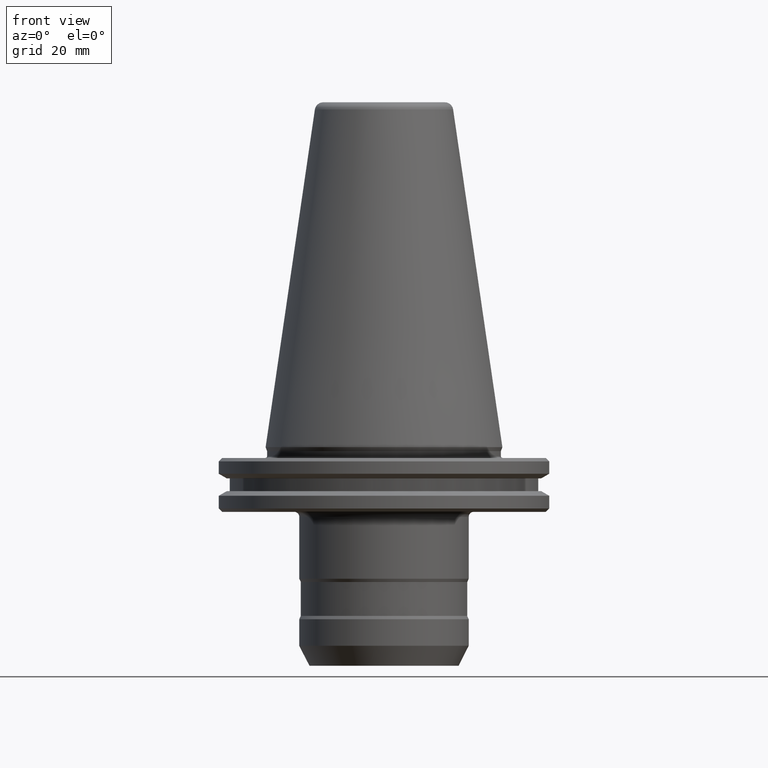
[diagram: clean part render]
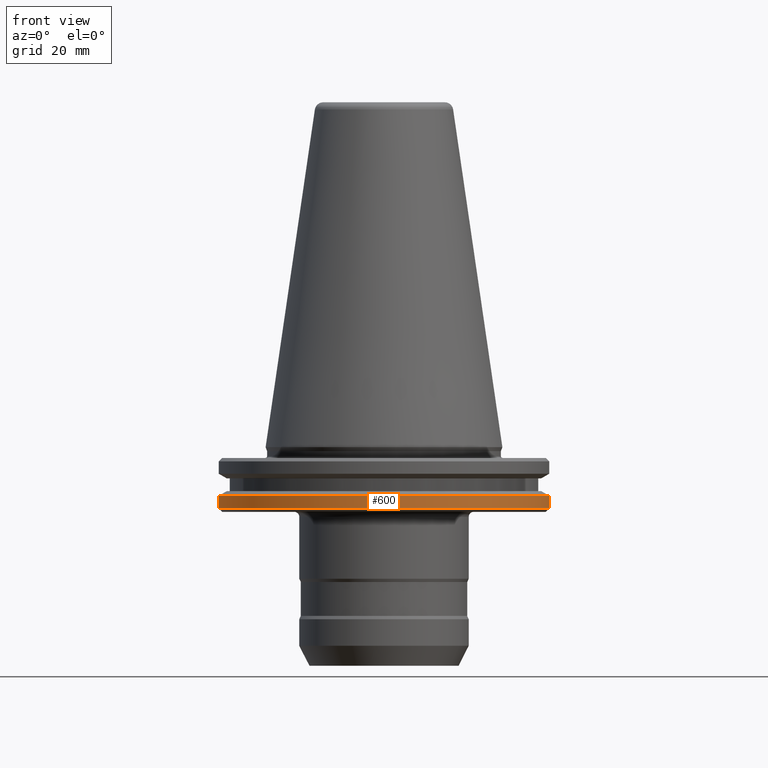
[diagram: same view with one face highlighted and labeled with its STEP entity id]
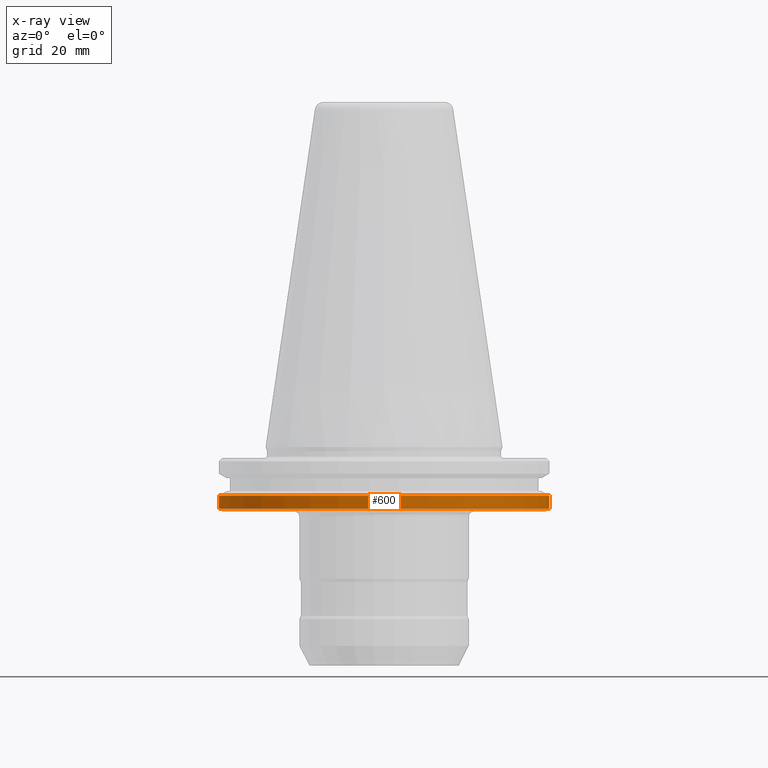
[diagram: x-ray of the same camera — body ghosted, the highlighted face saturated]
A machine part, front view. The second image highlights one B-rep face of the part: STEP entity #600.
The next image is the same camera in x-ray: the body ghosted, the highlighted face saturated — about 0% of this face is hidden behind the body in this view.
In plain terms, the highlighted cylindrical surface (partial cylindrical patch) has radius 48.75 mm, axis along (-0, -0, 1).
Its self-contained STEP definition (entity closure, byte-faithful):
#10 = CARTESIAN_POINT ( 'NONE',  ( 48.75000000637186300, 0.0000000000000000000, -14.34759526419227000 ) ) ;
#67 = CYLINDRICAL_SURFACE ( 'NONE', #376, 48.75000000637186300 ) ;
#70 = EDGE_CURVE ( 'NONE', #461, #1043, #275, .T. ) ;
#98 = CARTESIAN_POINT ( 'NONE',  ( 0.0000000000000000000, 0.0000000000000000000, -18.10000000000000500 ) ) ;
#179 = DIRECTION ( 'NONE',  ( 1.000000000000000000, 0.0000000000000000000, 0.0000000000000000000 ) ) ;
#183 = VERTEX_POINT ( 'NONE', #615 ) ;
#236 = EDGE_CURVE ( 'NONE', #461, #183, #438, .T. ) ;
#247 = DIRECTION ( 'NONE',  ( -0.0000000000000000000, -0.0000000000000000000, 1.000000000000000000 ) ) ;
#275 = CIRCLE ( 'NONE', #644, 48.75000000637186300 ) ;
#301 = DIRECTION ( 'NONE',  ( 1.000000000000000000, 0.0000000000000000000, 0.0000000000000000000 ) ) ;
#324 = VERTEX_POINT ( 'NONE', #10 ) ;
#331 = ORIENTED_EDGE ( 'NONE', *, *, #936, .F. ) ;
#376 = AXIS2_PLACEMENT_3D ( 'NONE', #669, #956, #301 ) ;
#391 = ORIENTED_EDGE ( 'NONE', *, *, #70, .T. ) ;
#434 = CIRCLE ( 'NONE', #974, 48.75000000637186300 ) ;
#438 = LINE ( 'NONE', #1031, #918 ) ;
#461 = VERTEX_POINT ( 'NONE', #567 ) ;
#548 = CARTESIAN_POINT ( 'NONE',  ( 48.75000000637186300, 0.0000000000000000000, 125.3933933958389100 ) ) ;
#567 = CARTESIAN_POINT ( 'NONE',  ( -48.75000000637186300, 5.970153146623674900E-015, -18.10000000000000500 ) ) ;
#577 = LINE ( 'NONE', #548, #796 ) ;
#600 = ADVANCED_FACE ( 'NONE', ( #1066 ), #67, .T. ) ;
#609 = EDGE_CURVE ( 'NONE', #1043, #324, #577, .T. ) ;
#615 = CARTESIAN_POINT ( 'NONE',  ( -48.75000000637186300, 5.970153146623674900E-015, -14.34759526419227000 ) ) ;
#644 = AXIS2_PLACEMENT_3D ( 'NONE', #98, #771, #179 ) ;
#669 = CARTESIAN_POINT ( 'NONE',  ( 0.0000000000000000000, 0.0000000000000000000, 125.3933933958389100 ) ) ;
#687 = EDGE_LOOP ( 'NONE', ( #968, #391, #803, #331 ) ) ;
#734 = DIRECTION ( 'NONE',  ( -0.0000000000000000000, -0.0000000000000000000, 1.000000000000000000 ) ) ;
#752 = CARTESIAN_POINT ( 'NONE',  ( 48.75000000637186300, 0.0000000000000000000, -18.10000000000000500 ) ) ;
#771 = DIRECTION ( 'NONE',  ( -0.0000000000000000000, -0.0000000000000000000, 1.000000000000000000 ) ) ;
#796 = VECTOR ( 'NONE', #734, 1000.000000000000000 ) ;
#803 = ORIENTED_EDGE ( 'NONE', *, *, #609, .T. ) ;
#918 = VECTOR ( 'NONE', #247, 1000.000000000000000 ) ;
#933 = CARTESIAN_POINT ( 'NONE',  ( 0.0000000000000000000, 0.0000000000000000000, -14.34759526419227000 ) ) ;
#936 = EDGE_CURVE ( 'NONE', #183, #324, #434, .T. ) ;
#956 = DIRECTION ( 'NONE',  ( -0.0000000000000000000, -0.0000000000000000000, 1.000000000000000000 ) ) ;
#968 = ORIENTED_EDGE ( 'NONE', *, *, #236, .F. ) ;
#973 = DIRECTION ( 'NONE',  ( -0.0000000000000000000, -0.0000000000000000000, 1.000000000000000000 ) ) ;
#974 = AXIS2_PLACEMENT_3D ( 'NONE', #933, #973, #1048 ) ;
#1031 = CARTESIAN_POINT ( 'NONE',  ( -48.75000000637186300, 5.970153146623674900E-015, 125.3933933958389100 ) ) ;
#1043 = VERTEX_POINT ( 'NONE', #752 ) ;
#1048 = DIRECTION ( 'NONE',  ( 1.000000000000000000, 0.0000000000000000000, 0.0000000000000000000 ) ) ;
#1066 = FACE_OUTER_BOUND ( 'NONE', #687, .T. ) ;